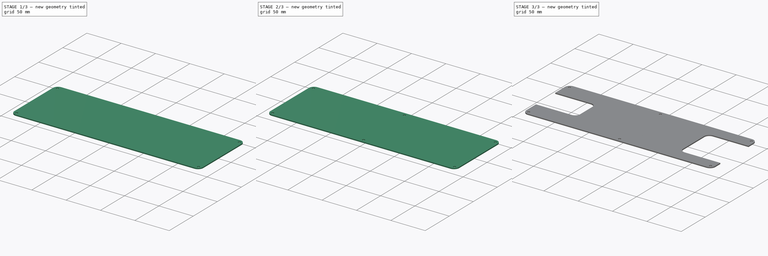
[diagram: build sequence overview — one tinted view per stage of 3, left to right]
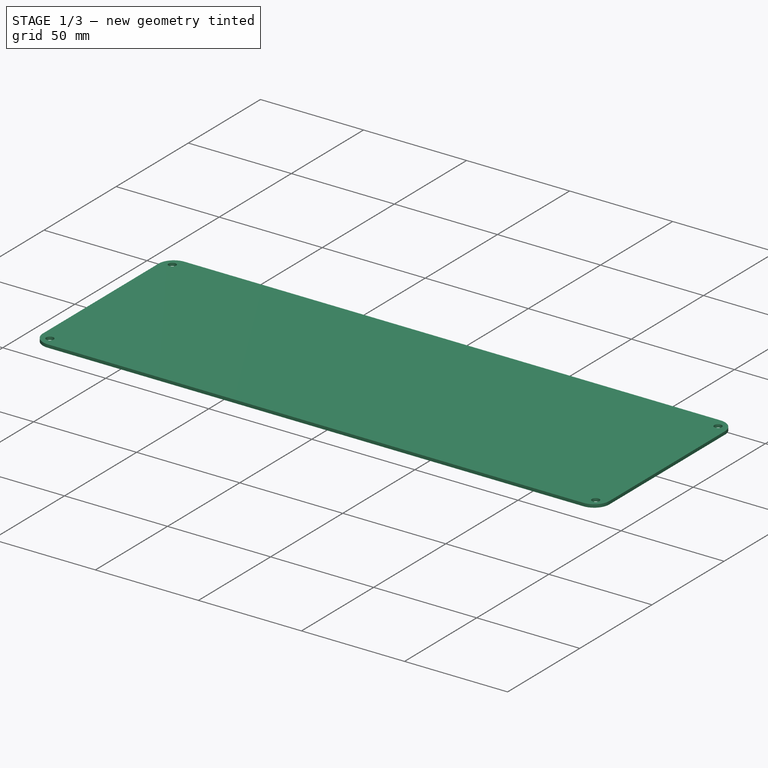
[diagram: stage 1 of 3 — iso view after this stage's code; geometry added in this stage tinted green]
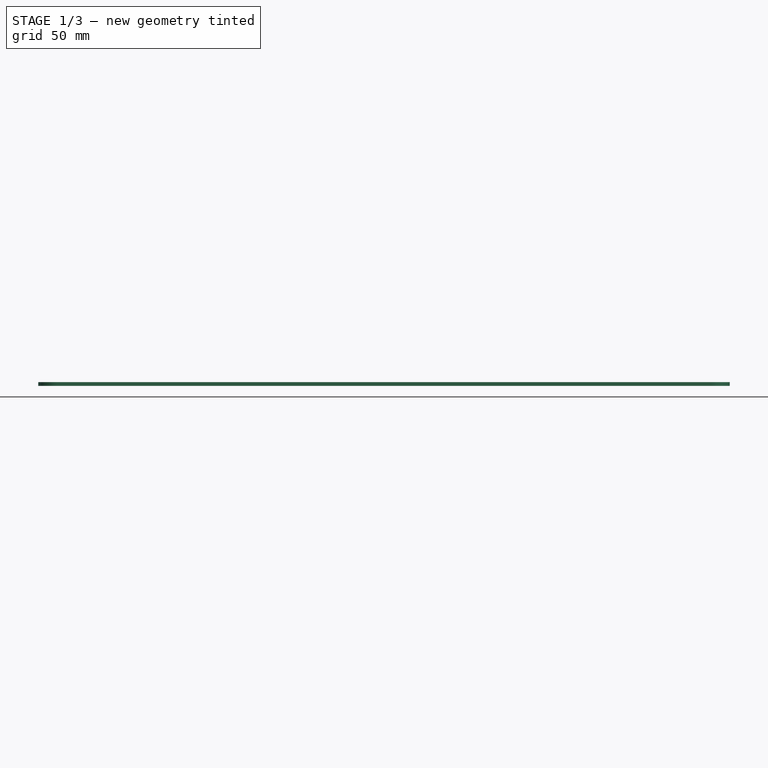
[diagram: stage 1 of 3 — front view after this stage's code; geometry added in this stage tinted green]
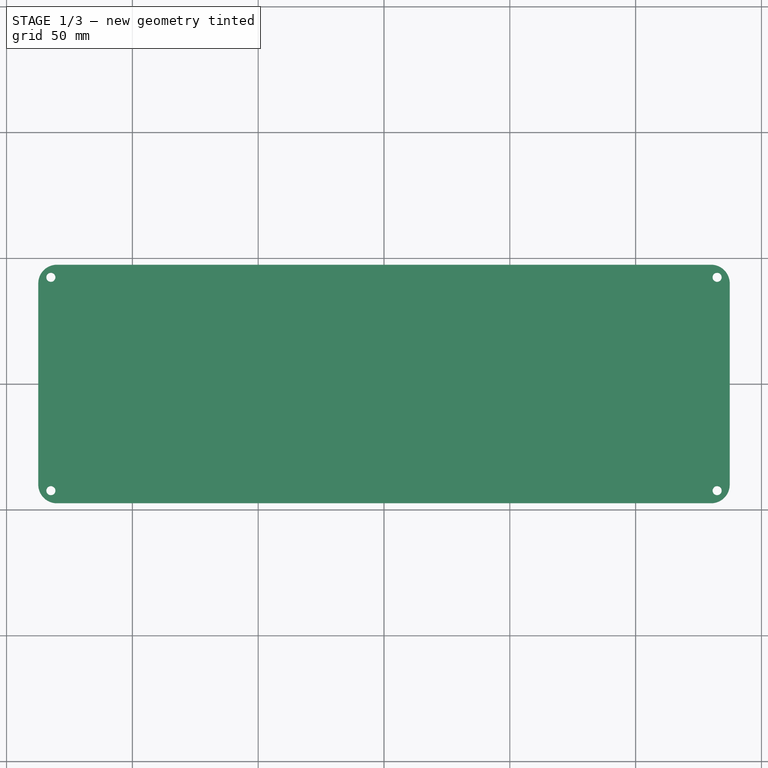
[diagram: stage 1 of 3 — top view after this stage's code; geometry added in this stage tinted green]
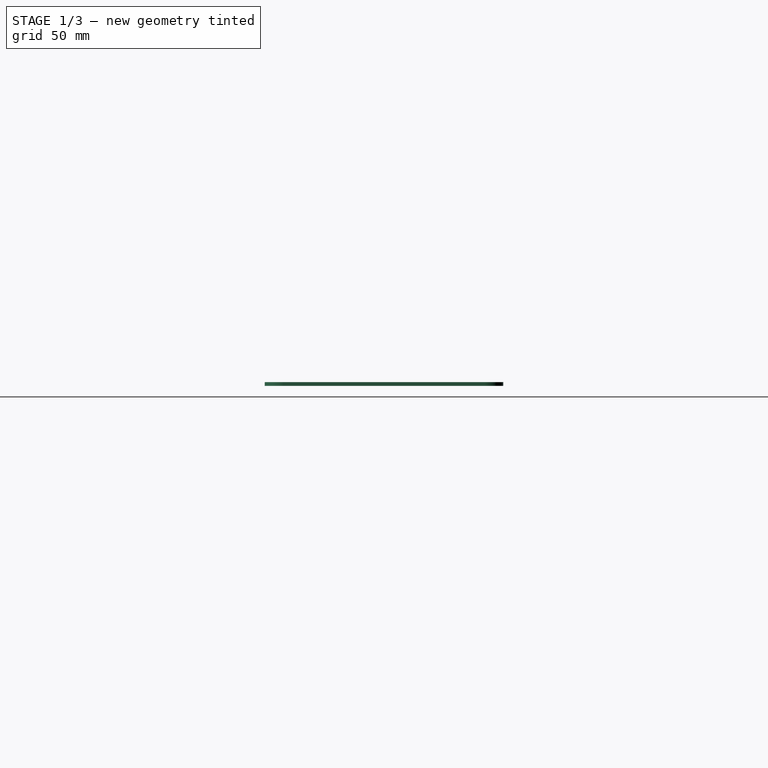
[diagram: stage 1 of 3 — right view after this stage's code; geometry added in this stage tinted green]
FCSTD DOCUMENT  (FreeCAD 1.0R39319 (Git))
Label: TopEnclosureDisplayBack_v2
License: All rights reserved
LicenseURL: https://en.wikipedia.org/wiki/All_rights_reserved
objects: PartDesign::SubShapeBinder×7, PartDesign::Hole×3, PartDesign::Mirrored×3, Sketcher::SketchObject×3, App::Link×2, PartDesign::Pad×2, PartDesign::MultiTransform×1, PartDesign::Pocket×1, PartDesign::Body×1
note: 40 computed .brp shape members not serialized (recipe doc carries the construction recipe); baked Part::Feature solids carry a one-line shape summary decoded from their .brp
EXTERNAL_REF file=Spec.FCStd obj=Spreadsheet
EXTERNAL_REF file=TopEnclosure.FCStd obj=Sketch

FEATURE [App::Link] Link  label="Vars"
  LinkedObject = -> <external Spec.FCStd>#Spreadsheet
FEATURE [App::Link] Link001  label="MasterSketch"
  LinkedObject = -> <external TopEnclosure.FCStd>#Sketch
FEATURE [PartDesign::SubShapeBinder] Binder
  BindCopyOnChange = 0
  BindMode = 0
  ClaimChildren = false
  Context = -> Body [Binder.]
  Fuse = false
  MakeFace = true
  OffsetFill = false
  OffsetIntersection = false
  OffsetJoinType = 0
  OffsetOpenResult = false
  PartialLoad = false
  Refine = true
  Relative = true
  Support = -> [Link001[Edge9,Edge10,Edge11,Edge12,Edge13,Edge14,Edge15,Edge16]]
  _Version = 2
FEATURE [PartDesign::SubShapeBinder] Binder001
  BindCopyOnChange = 0
  BindMode = 0
  ClaimChildren = false
  Context = -> Body [Binder001.]
  Fuse = false
  MakeFace = true
  OffsetFill = false
  OffsetIntersection = false
  OffsetJoinType = 0
  OffsetOpenResult = false
  PartialLoad = false
  Refine = true
  Relative = true
  Support = -> [Link001[Edge39]]
  _Version = 2
FEATURE [PartDesign::SubShapeBinder] Binder002
  BindCopyOnChange = 0
  BindMode = 0
  ClaimChildren = false
  Context = -> Body [Binder002.]
  Fuse = false
  MakeFace = true
  OffsetFill = false
  OffsetIntersection = false
  OffsetJoinType = 0
  OffsetOpenResult = false
  PartialLoad = false
  Refine = true
  Relative = true
  Support = -> [Link001[Edge40]]
  _Version = 2
FEATURE [PartDesign::Pad] Pad
  Direction = (0,0,1)
  Length = 1.5
  Length2 = 10
  Profile = -> Binder
  Refine = true
  Suppressed = false
  Type = 0
  expr: Length = <<Vars>>.top_enclosure_display_back_depth
FEATURE [PartDesign::Hole] Hole
  BaseFeature = -> Pad
  CustomThreadClearance = 0
  Depth = 25
  DepthType = 0
  Diameter = 3.6
  DrillForDepth = false
  DrillPoint = 1
  DrillPointAngle = 118
  HoleCutCountersinkAngle = 90
  HoleCutCustomValues = false
  HoleCutDepth = 0
  HoleCutDiameter = 6.1
  HoleCutType = 0
  ModelThread = false
  Profile = -> Binder001
  Refine = true
  Reversed = true
  Suppressed = false
  Tapered = false
  TaperedAngle = 90
  ThreadClass = 0
  ThreadDepth = 25
  ThreadDepthType = 0
  ThreadDirection = 0
  ThreadFit = 2
  ThreadSize = 9
  ThreadType = 1
  Threaded = false
  UseCustomThreadClearance = false
FEATURE [PartDesign::Mirrored] Mirrored
  MirrorPlane = -> YZ_Plane
  Refine = true
  Suppressed = false
  TransformMode = 0
FEATURE [PartDesign::Mirrored] Mirrored001
  MirrorPlane = -> XZ_Plane
  Refine = true
  Suppressed = false
  TransformMode = 0
FEATURE [PartDesign::MultiTransform] MultiTransform
  BaseFeature = -> Hole
  Originals = -> [Hole]
  Refine = true
  Suppressed = false
  TransformMode = 0
  Transformations = -> [Mirrored,Mirrored001]
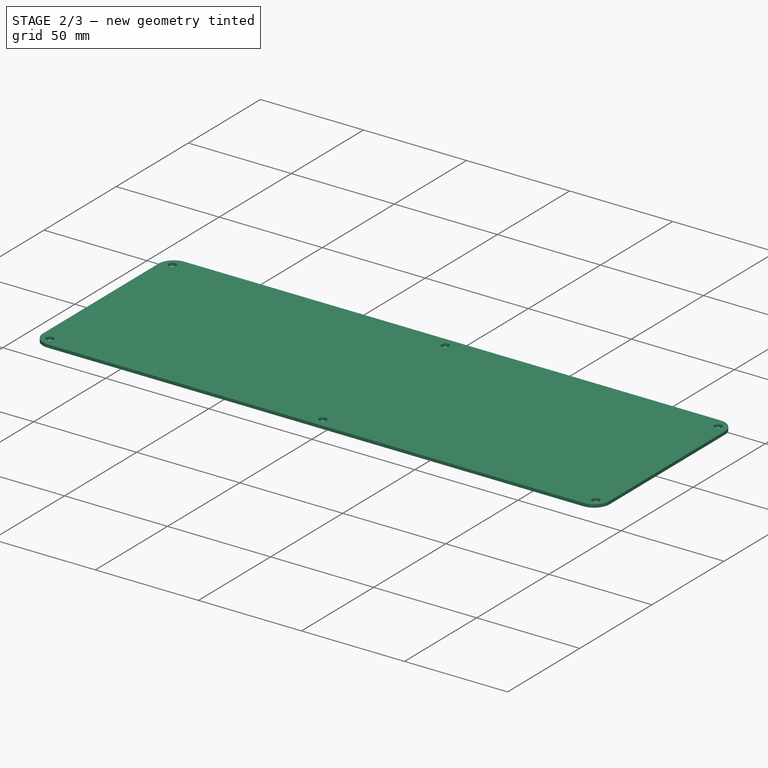
[diagram: stage 2 of 3 — iso view after this stage's code; geometry added in this stage tinted green]
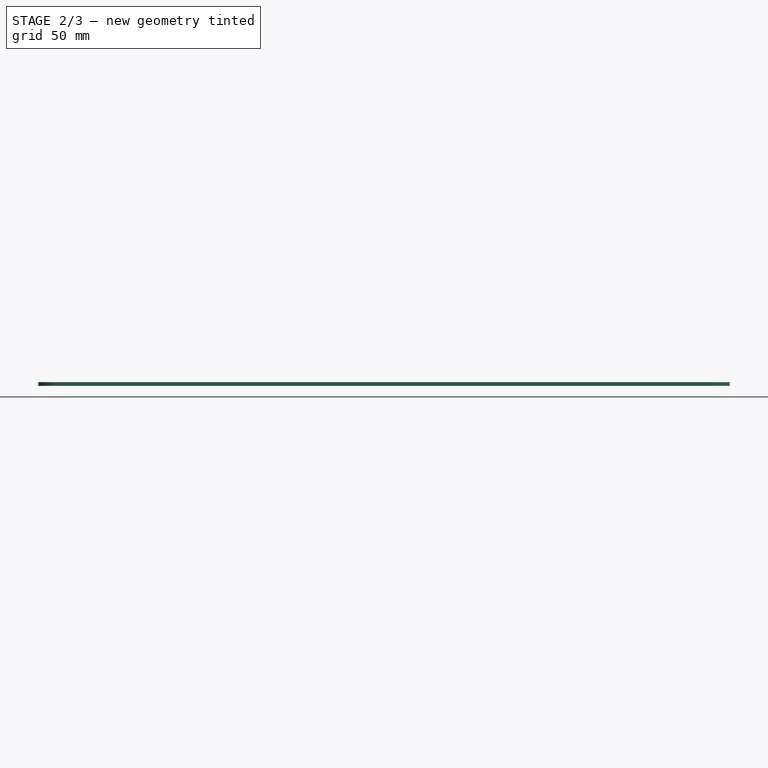
[diagram: stage 2 of 3 — front view after this stage's code; geometry added in this stage tinted green]
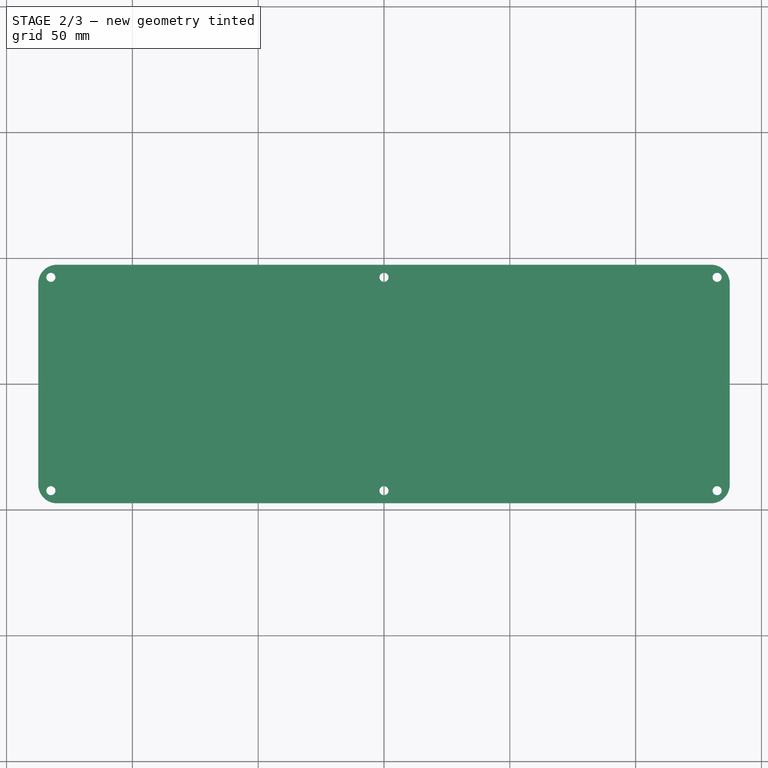
[diagram: stage 2 of 3 — top view after this stage's code; geometry added in this stage tinted green]
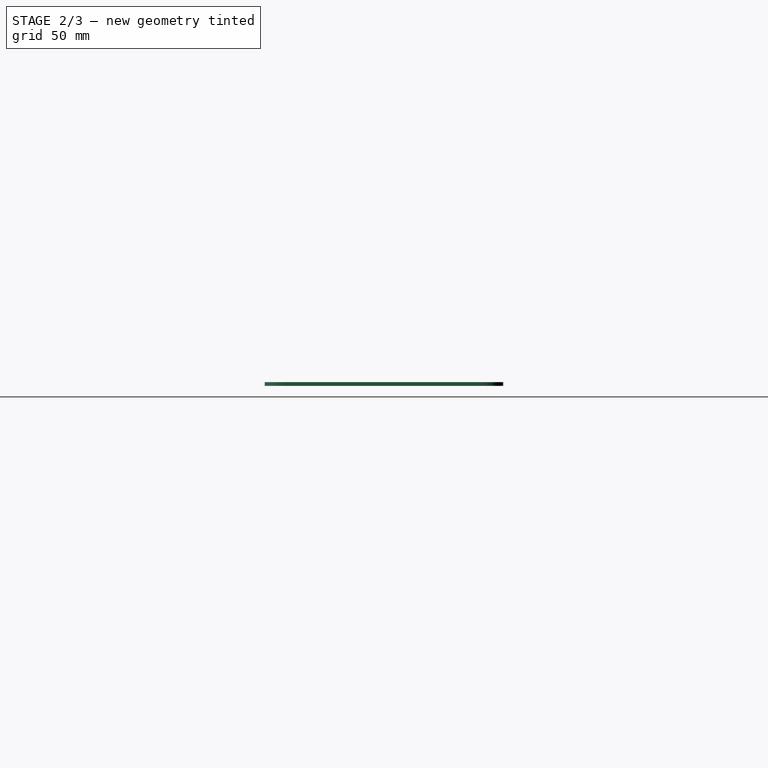
[diagram: stage 2 of 3 — right view after this stage's code; geometry added in this stage tinted green]
FEATURE [PartDesign::Hole] Hole001
  BaseFeature = -> MultiTransform
  CustomThreadClearance = 0
  Depth = 25
  DepthType = 0
  Diameter = 3.6
  DrillForDepth = false
  DrillPoint = 1
  DrillPointAngle = 118
  HoleCutCountersinkAngle = 90
  HoleCutCustomValues = false
  HoleCutDepth = 0
  HoleCutDiameter = 6.1
  HoleCutType = 0
  ModelThread = false
  Profile = -> Binder002
  Refine = true
  Reversed = true
  Suppressed = false
  Tapered = false
  TaperedAngle = 90
  ThreadClass = 0
  ThreadDepth = 25
  ThreadDepthType = 0
  ThreadDirection = 0
  ThreadFit = 2
  ThreadSize = 9
  ThreadType = 1
  Threaded = false
  UseCustomThreadClearance = false
FEATURE [PartDesign::Mirrored] Mirrored002
  BaseFeature = -> Hole001
  MirrorPlane = -> XZ_Plane
  Originals = -> [Hole001]
  Refine = true
  Suppressed = false
  TransformMode = 0
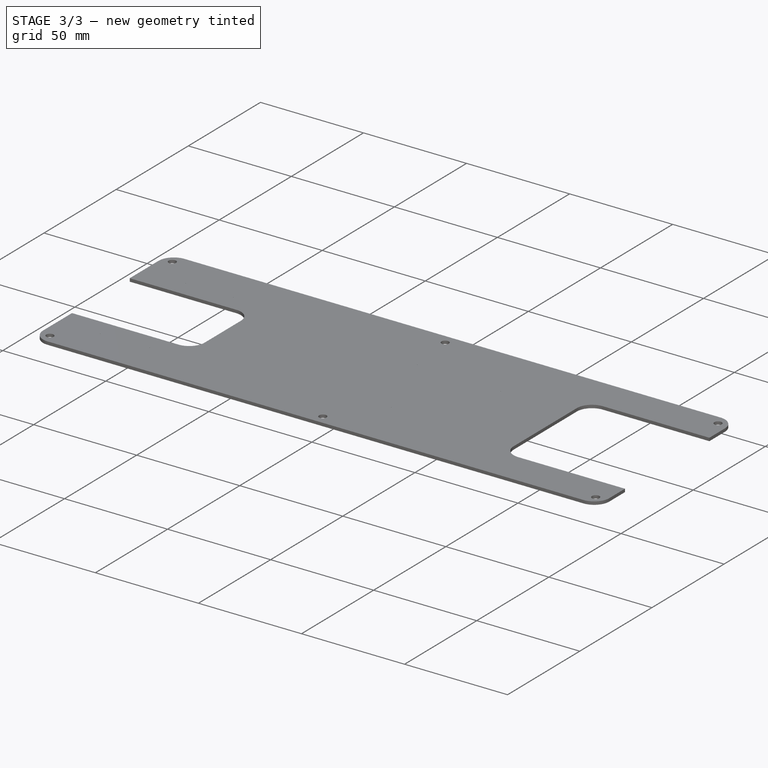
[diagram: stage 3 of 3 — iso view after this stage's code; geometry added in this stage tinted green]
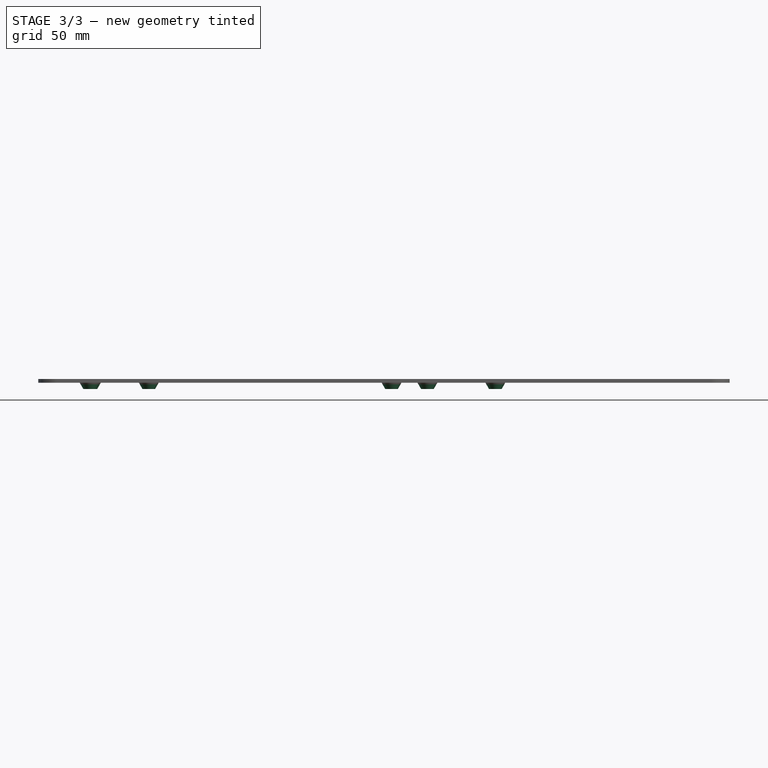
[diagram: stage 3 of 3 — front view after this stage's code; geometry added in this stage tinted green]
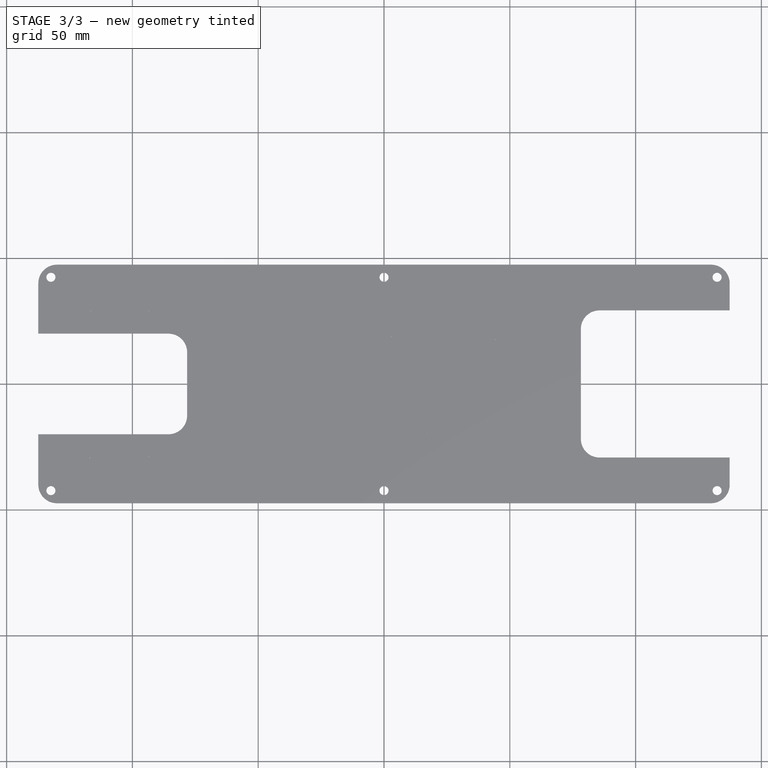
[diagram: stage 3 of 3 — top view after this stage's code; geometry added in this stage tinted green]
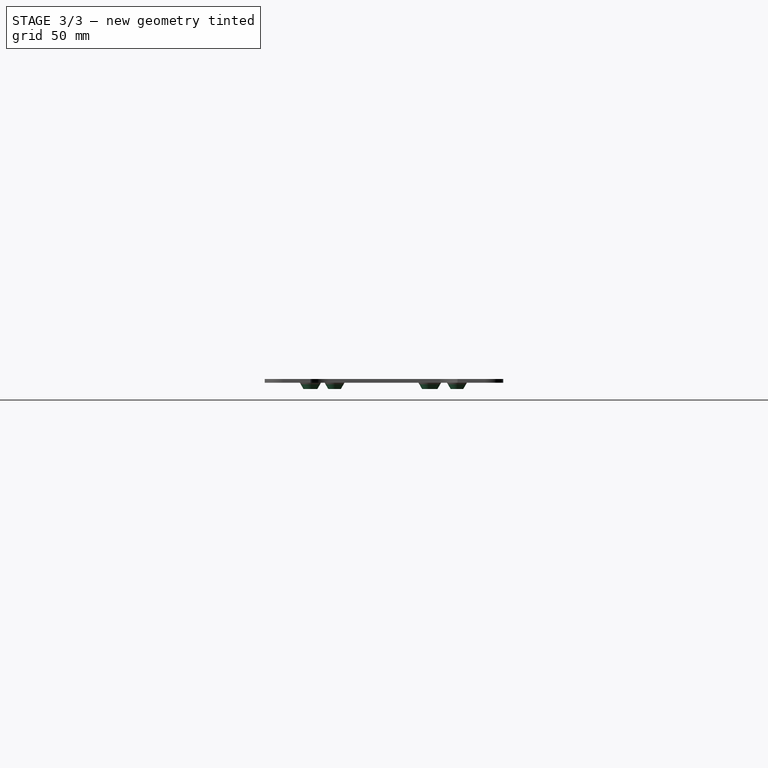
[diagram: stage 3 of 3 — right view after this stage's code; geometry added in this stage tinted green]
FEATURE [PartDesign::SubShapeBinder] Binder003
  BindCopyOnChange = 0
  BindMode = 0
  ClaimChildren = false
  Context = -> Body [Binder003.]
  Fuse = false
  MakeFace = true
  OffsetFill = false
  OffsetIntersection = false
  OffsetJoinType = 0
  OffsetOpenResult = false
  PartialLoad = false
  Refine = true
  Relative = true
  Support = -> [Link001[Edge47]]
  _Version = 2
FEATURE [PartDesign::SubShapeBinder] Binder004
  BindCopyOnChange = 0
  BindMode = 0
  ClaimChildren = false
  Context = -> Body [Binder004.]
  Fuse = false
  MakeFace = true
  OffsetFill = false
  OffsetIntersection = false
  OffsetJoinType = 0
  OffsetOpenResult = false
  PartialLoad = false
  Refine = true
  Relative = true
  Support = -> [Link001[Edge35]]
  _Version = 2
FEATURE [Sketcher::SketchObject] Sketch001
  ArcFitTolerance = 1e-06
  AttachmentSupport = -> [XY_Plane]
  ExternalGeometry = -> [Binder004]
  FullyConstrained = true
  MakeInternals = false
  MapMode = 5
  sketch-geometry (34):
    g0: LineSegment StartX=88.25 StartY=4.75 StartZ=0 EndX=88.25 EndY=-20.25 EndZ=0
    g1: LineSegment StartX=0.25 StartY=18.25 StartZ=0 EndX=0.25 EndY=-20.25 EndZ=0
    g2: LineSegment StartX=3.25 StartY=-23.25 StartZ=0 EndX=57.25 EndY=-23.25 EndZ=0
    g3: LineSegment StartX=60.25 StartY=-20.25 StartZ=0 EndX=60.25 EndY=18.25 EndZ=0
    g4: LineSegment StartX=57.25 StartY=21.25 StartZ=0 EndX=3.25 EndY=21.25 EndZ=0
    g5: ArcOfCircle CenterX=3.25 CenterY=18.25 CenterZ=0 NormalX=0 NormalY=0 NormalZ=1 AngleXU=0 Radius=3 StartAngle=1.5708 EndAngle=3.14159
    g6: ArcOfCircle CenterX=3.25 CenterY=-20.25 CenterZ=0 NormalX=0 NormalY=0 NormalZ=1 AngleXU=0 Radius=3 StartAngle=3.14159 EndAngle=4.71239
    g7: ArcOfCircle CenterX=57.25 CenterY=-20.25 CenterZ=0 NormalX=0 NormalY=0 NormalZ=1 AngleXU=0 Radius=3 StartAngle=4.71239 EndAngle=6.28319
    g8: ArcOfCircle CenterX=57.25 CenterY=18.25 CenterZ=0 NormalX=0 NormalY=0 NormalZ=1 AngleXU=0 Radius=3 StartAngle=-9e-16 EndAngle=1.5708
    g9: GeomPoint [constr] X=0.25 Y=21.25 Z=0
    g10: GeomPoint [constr] X=60.25 Y=-23.25 Z=0
    g11: LineSegment StartX=58.25 StartY=4.75 StartZ=0 EndX=58.25 EndY=-20.25 EndZ=0
    g12: Circle CenterX=3 CenterY=18.75 CenterZ=0 NormalX=0 NormalY=0 NormalZ=1 AngleXU=0 Radius=1.5
    g13: Circle CenterX=44.25 CenterY=17.65 CenterZ=0 NormalX=0 NormalY=0 NormalZ=1 AngleXU=0 Radius=1.5
    g14: Circle CenterX=17.25 CenterY=-19.65 CenterZ=0 NormalX=0 NormalY=0 NormalZ=1 AngleXU=0 Radius=1.5
    g15: LineSegment StartX=-117 StartY=-32.5 StartZ=0 EndX=-93 EndY=-32.5 EndZ=0
    g16: LineSegment StartX=-90 StartY=-29.5 StartZ=0 EndX=-90 EndY=29.5 EndZ=0
    g17: LineSegment StartX=-93 StartY=32.5 StartZ=0 EndX=-117 EndY=32.5 EndZ=0
    g18: LineSegment StartX=-120 StartY=29.5 StartZ=0 EndX=-120 EndY=-29.5 EndZ=0
    g19: ArcOfCircle CenterX=-117 CenterY=-29.5 CenterZ=0 NormalX=0 NormalY=0 NormalZ=1 AngleXU=0 Radius=3 StartAngle=3.14159 EndAngle=4.71239
    g20: ArcOfCircle CenterX=-93 CenterY=-29.5 CenterZ=0 NormalX=0 NormalY=0 NormalZ=1 AngleXU=0 Radius=3 StartAngle=4.71239 EndAngle=6.28319
    g21: ArcOfCircle CenterX=-93 CenterY=29.5 CenterZ=0 NormalX=0 NormalY=0 NormalZ=1 AngleXU=0 Radius=3 StartAngle=0 EndAngle=1.5708
    g22: ArcOfCircle CenterX=-117 CenterY=29.5 CenterZ=0 NormalX=0 NormalY=0 NormalZ=1 AngleXU=0 Radius=3 StartAngle=1.5708 EndAngle=3.14159
    g23: GeomPoint [constr] X=-90 Y=32.5 Z=0
    g24: GeomPoint [constr] X=-105 Y=0 Z=0
    g25: LineSegment [constr] StartX=-116.5 StartY=-29 StartZ=0 EndX=-93.5 EndY=-29 EndZ=0
    g26: LineSegment [constr] StartX=-93.5 StartY=-29 StartZ=0 EndX=-93.5 EndY=29 EndZ=0
    g27: LineSegment [constr] StartX=-93.5 StartY=29 StartZ=0 EndX=-116.5 EndY=29 EndZ=0
    g28: LineSegment [constr] StartX=-116.5 StartY=29 StartZ=0 EndX=-116.5 EndY=-29 EndZ=0
    g29: GeomPoint [constr] X=-105 Y=0 Z=0
    g30: Circle CenterX=-116.5 CenterY=29 CenterZ=0 NormalX=0 NormalY=0 NormalZ=1 AngleXU=0 Radius=1.375
    g31: Circle CenterX=-93.5 CenterY=29 CenterZ=0 NormalX=0 NormalY=0 NormalZ=1 AngleXU=0 Radius=1.375
    g32: Circle CenterX=-93.5 CenterY=-29 CenterZ=0 NormalX=0 NormalY=0 NormalZ=1 AngleXU=0 Radius=1.375
    g33: Circle CenterX=-117 CenterY=-29.5 CenterZ=0 NormalX=0 NormalY=0 NormalZ=1 AngleXU=0 Radius=1.375
  constraints (84):
    c: Vertical(g0)
    c: DistanceX(g0,g-3) = 30
    c: DistanceY(g-3,g0) = 12
    c: DistanceY(g0,g0) = 25
    c: Tangent(g1,g5) = -1.5708
    c: Tangent(g1,g6) = -1.5708
    c: Tangent(g2,g6) = -1.5708
    c: Tangent(g2,g7) = -1.5708
    c: Tangent(g3,g7) = -1.5708
    c: Tangent(g3,g8) = -1.5708
    c: Tangent(g4,g8) = -1.5708
    c: Tangent(g4,g5) = -1.5708
    c: Vertical(g1)
    c: Vertical(g3)
    c: Horizontal(g2)
    c: Horizontal(g4)
    c: Equal(g5,g6)
    c: Equal(g6,g7)
    c: Equal(g7,g8)
    c: PointOnObject(g9,g1)
    c: PointOnObject(g9,g4)
    c: PointOnObject(g10,g2)
    c: PointOnObject(g10,g3)
    c: DistanceX(g1,g3) = 60
    c: DistanceY(g2,g4) = 44.5
    c: Radius(g6) = 3
    c: Distance(g11) = 25
    c: Vertical(g11)
    c: DistanceY(g2,g11) = 3
    c: DistanceX(g11,g3) = 2
    c: Horizontal(g11,g0)
    c: Equal(g14,g13)
    c: Equal(g13,g12)
    c: Diameter(g13) = 3
    c: DistanceY(g12,g4) = 2.5
    c: DistanceX(g1,g12) = 2.75
    c: DistanceY(g2,g14) = 3.6
    c: DistanceX(g1,g14) = 17
    c: DistanceY(g13,g4) = 3.6
    c: DistanceX(g13,g3) = 16
    c: DistanceX(g11,g0) = 30
    c: Tangent(g15,g19) = -1.5708
    c: Tangent(g15,g20) = -1.5708
    c: Tangent(g16,g20) = -1.5708
    c: Tangent(g16,g21) = -1.5708
    c: Tangent(g17,g21) = -1.5708
    c: Tangent(g17,g22) = -1.5708
    c: Tangent(g18,g22) = -1.5708
    c: Tangent(g18,g19) = -1.5708
    c: Horizontal(g15)
    c: Horizontal(g17)
    c: Vertical(g16)
    c: Vertical(g18)
    c: Equal(g19,g20)
    c: Equal(g20,g21)
    c: Equal(g21,g22)
    c: Symmetric(g17,g15,g24)
    c: PointOnObject(g23,g16)
    c: PointOnObject(g23,g17)
    c: Radius(g20) = 3
    c: PointOnObject(g24,g-1)
    c: DistanceX(g18,g16) = 30
    c: DistanceY(g15,g17) = 65
    c: DistanceX(g24,g-1) = 105
    c: Coincident(g25,g26)
    c: Coincident(g26,g27)
    c: Coincident(g27,g28)
    c: Coincident(g28,g25)
    c: Horizontal(g25)
    c: Horizontal(g27)
    c: Vertical(g26)
    c: Vertical(g28)
    c: Symmetric(g27,g25,g29)
    c: Coincident(g29,g24)
    c: DistanceY(g25,g27) = 58
    c: DistanceX(g27,g27) = 23
    c: Coincident(g30,g27)
    c: Diameter(g30) = 2.75
    c: Coincident(g31,g26)
    c: Coincident(g32,g25)
    c: Coincident(g33,g19)
    c: Equal(g33,g32)
    c: Equal(g32,g31)
    c: Equal(g31,g30)
FEATURE [Sketcher::SketchObject] Sketch
  ArcFitTolerance = 1e-06
  AttachmentSupport = -> [XY_Plane]
  ExternalGeometry = -> [Binder003,Sketch001,Binder]
  FullyConstrained = true
  MakeInternals = false
  MapMode = 5
  sketch-geometry (18):
    g0: LineSegment StartX=78.25 StartY=21.85 StartZ=0 EndX=78.25 EndY=-21.85 EndZ=0
    g1: LineSegment StartX=85.65 StartY=-29.25 StartZ=0 EndX=142.4 EndY=-29.25 EndZ=0
    g2: LineSegment StartX=142.4 StartY=-29.25 StartZ=0 EndX=142.4 EndY=29.25 EndZ=0
    g3: LineSegment StartX=142.4 StartY=29.25 StartZ=0 EndX=85.65 EndY=29.25 EndZ=0
    g4: ArcOfCircle CenterX=85.65 CenterY=21.85 CenterZ=0 NormalX=0 NormalY=0 NormalZ=1 AngleXU=0 Radius=7.4 StartAngle=1.5708 EndAngle=3.14159
    g5: GeomPoint [constr] X=78.25 Y=29.25 Z=0
    g6: ArcOfCircle CenterX=85.65 CenterY=-21.85 CenterZ=0 NormalX=0 NormalY=0 NormalZ=1 AngleXU=0 Radius=7.4 StartAngle=3.14159 EndAngle=4.71239
    g7: GeomPoint [constr] X=78.25 Y=-29.25 Z=0
    g8: LineSegment StartX=-196.55 StartY=-20 StartZ=0 EndX=-85.65 EndY=-20 EndZ=0
    g9: LineSegment StartX=-78.25 StartY=-12.6 StartZ=0 EndX=-78.25 EndY=12.6 EndZ=0
    g10: LineSegment StartX=-85.65 StartY=20 StartZ=0 EndX=-196.55 EndY=20 EndZ=0
    g11: LineSegment StartX=-196.55 StartY=20 StartZ=0 EndX=-196.55 EndY=-20 EndZ=0
    g12: GeomPoint [constr] X=-137.4 Y=0 Z=0
    g13: ArcOfCircle CenterX=-85.65 CenterY=12.6 CenterZ=0 NormalX=0 NormalY=0 NormalZ=1 AngleXU=0 Radius=7.4 StartAngle=0 EndAngle=1.5708
    g14: GeomPoint [constr] X=-78.25 Y=20 Z=0
    g15: ArcOfCircle CenterX=-85.65 CenterY=-12.6 CenterZ=0 NormalX=0 NormalY=0 NormalZ=1 AngleXU=0 Radius=7.4 StartAngle=4.71239 EndAngle=6.28319
    g16: GeomPoint [constr] X=-78.25 Y=-20 Z=0
    g17: LineSegment [constr] StartX=-78.25 StartY=0 StartZ=0 EndX=78.25 EndY=0 EndZ=0
  constraints (43):
    c: Coincident(g1,g2)
    c: Coincident(g2,g3)
    c: Vertical(g0)
    c: Horizontal(g1)
    c: Horizontal(g3)
    c: Symmetric(g1,g2,g-1)
    c: DistanceY(g-3,g2) = 2
    c: DistanceX(g-4,g2) = 5
    c: PointOnObject(g5,g0)
    c: PointOnObject(g5,g3)
    c: Tangent(g0,g4) = -1.5708
    c: Tangent(g3,g4) = -1.5708
    c: PointOnObject(g7,g0)
    c: PointOnObject(g7,g1)
    c: Tangent(g0,g6) = -1.5708
    c: Tangent(g1,g6) = -1.5708
    c: Equal(g6,g4)
    c: Equal(g4,g-4)
    c: DistanceX(g0,g-6) = 10
    c: Coincident(g10,g11)
    c: Coincident(g11,g8)
    c: Horizontal(g8)
    c: Horizontal(g10)
    c: Vertical(g9)
    c: Vertical(g11)
    c: Symmetric(g14,g8,g12)
    c: PointOnObject(g12,g-1)
    c: Vertical(g12,g-7)
    c: PointOnObject(g14,g9)
    c: PointOnObject(g14,g10)
    c: Tangent(g9,g13) = -1.5708
    c: Tangent(g10,g13) = -1.5708
    c: PointOnObject(g16,g8)
    c: PointOnObject(g16,g9)
    c: Tangent(g8,g15) = -1.5708
    c: Tangent(g9,g15) = -1.5708
    c: Equal(g15,g13)
    c: Equal(g13,g4)
    c: DistanceY(g11,g11) = 40
    c: PointOnObject(g17,g9)
    c: PointOnObject(g17,g0)
    c: Horizontal(g17)
    c: Symmetric(g17,g17,g-1)
FEATURE [PartDesign::Pocket] Pocket
  BaseFeature = -> Mirrored002
  Direction = (0,0,-1)
  Length = 5
  Length2 = 5
  Profile = -> Sketch
  ReferenceAxis = -> Sketch [N_Axis]
  Refine = true
  Reversed = true
  Suppressed = false
  Type = 1
FEATURE [Sketcher::SketchObject] Sketch002
  ArcFitTolerance = 1e-06
  AttachmentOffset = pos=(0,0,-2.5) rot=(0,0,1;0rad)
  AttachmentSupport = -> [XY_Plane]
  ExternalGeometry = -> [Sketch001]
  FullyConstrained = true
  MakeInternals = false
  MapMode = 5
  Placement = pos=(0,0,-2.5) rot=(0,0,1;0rad)
  sketch-geometry (7):
    g0: Circle CenterX=-116.5 CenterY=29 CenterZ=0 NormalX=0 NormalY=0 NormalZ=1 AngleXU=0 Radius=2.5
    g1: Circle CenterX=-93.5 CenterY=29 CenterZ=0 NormalX=0 NormalY=0 NormalZ=1 AngleXU=0 Radius=2.5
    g2: Circle CenterX=-117 CenterY=-29.5 CenterZ=0 NormalX=0 NormalY=0 NormalZ=1 AngleXU=0 Radius=2.5
    g3: Circle CenterX=-93.5 CenterY=-29 CenterZ=0 NormalX=0 NormalY=0 NormalZ=1 AngleXU=0 Radius=2.5
    g4: Circle CenterX=17.25 CenterY=-19.65 CenterZ=0 NormalX=0 NormalY=0 NormalZ=1 AngleXU=0 Radius=2.5
    g5: Circle CenterX=44.25 CenterY=17.65 CenterZ=0 NormalX=0 NormalY=0 NormalZ=1 AngleXU=0 Radius=2.5
    g6: Circle CenterX=3 CenterY=18.75 CenterZ=0 NormalX=0 NormalY=0 NormalZ=1 AngleXU=0 Radius=2.5
  constraints (14):
    c: Coincident(g0,g-4)
    c: Coincident(g1,g-3)
    c: Coincident(g2,g-5)
    c: Coincident(g3,g-6)
    c: Coincident(g4,g-7)
    c: Coincident(g5,g-9)
    c: Coincident(g6,g-8)
    c: Equal(g0,g2)
    c: Equal(g2,g3)
    c: Equal(g3,g1)
    c: Equal(g1,g4)
    c: Equal(g4,g6)
    c: Equal(g6,g5)
    c: Diameter(g0) = 5
FEATURE [PartDesign::SubShapeBinder] Binder005
  BindCopyOnChange = 0
  BindMode = 0
  ClaimChildren = false
  Context = -> Body [Binder005.]
  Fuse = false
  MakeFace = true
  OffsetFill = false
  OffsetIntersection = false
  OffsetJoinType = 0
  OffsetOpenResult = false
  PartialLoad = false
  Refine = true
  Relative = true
  Support = -> [Sketch002]
  _Version = 2
FEATURE [PartDesign::Pad] Pad001
  BaseFeature = -> Pocket
  Direction = (0,0,1)
  Length = 2.5
  Length2 = 10
  Profile = -> Binder005
  Refine = true
  Suppressed = false
  TaperAngle = 30
  Type = 0
FEATURE [PartDesign::SubShapeBinder] Binder006
  BindCopyOnChange = 0
  BindMode = 0
  ClaimChildren = false
  Context = -> Body [Binder006.]
  Fuse = false
  MakeFace = true
  OffsetFill = false
  OffsetIntersection = false
  OffsetJoinType = 0
  OffsetOpenResult = false
  PartialLoad = false
  Refine = true
  Relative = true
  Support = -> [Sketch002]
  _Version = 2
FEATURE [PartDesign::Hole] Hole002
  BaseFeature = -> Pad001
  CustomThreadClearance = 0
  Depth = 3
  DepthType = 0
  Diameter = 3.5
  DrillForDepth = false
  DrillPoint = 1
  DrillPointAngle = 118
  HoleCutCountersinkAngle = 90
  HoleCutCustomValues = false
  HoleCutDepth = 0
  HoleCutDiameter = 6.1
  HoleCutType = 0
  ModelThread = false
  Profile = -> Binder006
  Refine = true
  Reversed = true
  Suppressed = false
  Tapered = false
  TaperedAngle = 90
  ThreadClass = 0
  ThreadDepth = 3
  ThreadDepthType = 0
  ThreadDirection = 0
  ThreadFit = 0
  ThreadSize = 0
  ThreadType = 0
  Threaded = false
  UseCustomThreadClearance = false
  expr: Diameter = <<Vars>>.nut_inserts_m2
FEATURE [PartDesign::Body] Body  label="Top Enclosure Display Back"
  AllowCompound = false
  Group = -> [Binder002,Binder001,Binder,Pad,Hole,MultiTransform,Mirrored,Mirrored001,Hole001,Mirrored002,Sketch,Binder003,Pocket,Sketch001,Binder004,Sketch002,Binder005,Pad001,Binder006,Hole002]
  Origin = -> Origin
  Tip = -> Hole002

RESOLVED EXTERNAL PARTS (link-assembly join: the EXTERNAL_REF files above that resolve inside this repo's crawl, each included once):
---- part Spec.FCStd = doc fcstd_a8ec68f4a39c ----
FCSTD DOCUMENT  (FreeCAD 1.0R39319 (Git))
Label: Spec
License: All rights reserved
LicenseURL: https://en.wikipedia.org/wiki/All_rights_reserved
objects: Spreadsheet::Sheet×1

FEATURE [Spreadsheet::Sheet] Spreadsheet  label="Vars"
  cells = A1='Common; A2='clearance; B2(clearance)=0.2; A3='nut_inserts_m2; B3(nut_inserts_m2)=3.5; A4='nut_inserts_m3; B4(nut_inserts_m3)=4.5; A5='wall; B5(wall)=2.5; A6='ext_radius; B6(ext_radius)=10; A7='hood_angle; B7(hood_angle)=4; A12='Display; A13='display_width; B13(display_width)=231.3; A14='display_height; B14(display_height)=64.3; A15='display_depth; B15(display_depth)=5.5; A16='display_offset_bottom; B16(display_offset_bottom)==3 + display_view_offset; C16='display_view_offset; D16(display_view_offset)=1; A17='display_offset_left; B17(display_offset_left)==2.5 + display_view_offset; A18='display_offset_right; B18(display_offset_right)==7.5 + display_view_offset; A19='display_offset_top; B19(display_offset_top)==3 + display_view_offset; F20='b; A21='Top Enclosure; A22='top_enclosure_width; B22(top_enclosure_width)=280; A23='top_enclosure_height; B23(top_enclosure_height)=100; A24='top_enclosure_front_depth; B24(top_enclosure_front_depth)=1; A25='top_enclosure_back_depth; B25(top_enclosure_back_depth)==wall; A26='top_enclosure_display_back_depth; B26(top_enclosure_display_back_depth)=1; A27='top_enclosure_depth; B27(top_enclosure_depth)=14; A28='top_enclosure_internal_depth; B28(top_enclosure_internal_depth)==top_enclosure_depth - top_enclosure_front_depth - display_depth - top_enclosure_display_back_depth - top_enclosure_back_depth + wall; A30='Bottom Enclosure; A31='bottom_enclosure_width; B31(bottom_enclosure_width)==top_enclosure_width; A32='bottom_enclosure_height; B32(bottom_enclosure_height)=160; A33='bottom_enclosure_depth; B33(bottom_enclosure_depth)=30; A35='Keyboard Plate; A36='keyboard_plate_width; B36(keyboard_plate_width)==235 - 2; A37='keyboard_plate_height; B37(keyboard_plate_height)==82.5 - 2; A38='keyboard_plate_radius; B38(kayboard_plate_radius)==ext_radius / 2; A40='Keyboard Plate; A41='wire_hole_offset_x; B41(wire_hole_offset_x)=40; A42='wire_hole_width; B42(wire_hole_width)=30; A43='wire_hole_height; B43(wire_hole_height)=9
---- part TopEnclosure.FCStd = doc fcstd_a96d0c470227 ----
FCSTD DOCUMENT  (FreeCAD 1.0R39319 (Git))
Label: TopEnclosure
License: All rights reserved
LicenseURL: https://en.wikipedia.org/wiki/All_rights_reserved
objects: App::Link×1, Sketcher::SketchObject×1
note: 2 computed .brp shape members not serialized (recipe doc carries the construction recipe); baked Part::Feature solids carry a one-line shape summary decoded from their .brp
EXTERNAL_REF file=Spec.FCStd obj=Spreadsheet

FEATURE [App::Link] Link  label="Vars"
  LinkedObject = -> <external Spec.FCStd>#Spreadsheet
FEATURE [Sketcher::SketchObject] Sketch  label="MasterSketch"
  ArcFitTolerance = 1e-06
  FullyConstrained = true
  MakeInternals = false
  expr: Constraints[100] = <<Vars>>.display_offset_left
  expr: Constraints[101] = <<Vars>>.display_offset_right
  expr: Constraints[102] = <<Vars>>.display_offset_bottom
  expr: Constraints[150] = <<Vars>>.ext_radius
  expr: Constraints[64] = <<Vars>>.wall
  expr: Constraints[65] = <<Vars>>.top_enclosure_height
  expr: Constraints[66] = <<Vars>>.top_enclosure_width
  expr: Constraints[67] = <<Vars>>.clearance / 2
  expr: Constraints[96] = <<Vars>>.display_width + <<Vars>>.clearance
  expr: Constraints[97] = <<Vars>>.display_height + <<Vars>>.clearance
  expr: Constraints[99] = <<Vars>>.display_offset_top
  sketch-geometry (62):
    g0: LineSegment StartX=-137.5 StartY=40 StartZ=0 EndX=-137.5 EndY=-40 EndZ=0
    g1: LineSegment StartX=-130 StartY=-47.5 StartZ=0 EndX=130 EndY=-47.5 EndZ=0
    g2: LineSegment StartX=137.5 StartY=-40 StartZ=0 EndX=137.5 EndY=40 EndZ=0
    g3: LineSegment StartX=130 StartY=47.5 StartZ=0 EndX=-130 EndY=47.5 EndZ=0
    g4: ArcOfCircle CenterX=-130 CenterY=40 CenterZ=0 NormalX=0 NormalY=0 NormalZ=1 AngleXU=0 Radius=7.5 StartAngle=1.5708 EndAngle=3.14159
    g5: ArcOfCircle CenterX=-130 CenterY=-40 CenterZ=0 NormalX=0 NormalY=0 NormalZ=1 AngleXU=0 Radius=7.5 StartAngle=3.14159 EndAngle=4.71239
    g6: ArcOfCircle CenterX=130 CenterY=-40 CenterZ=0 NormalX=0 NormalY=0 NormalZ=1 AngleXU=0 Radius=7.5 StartAngle=4.71239 EndAngle=6.28319
    g7: ArcOfCircle CenterX=130 CenterY=40 CenterZ=0 NormalX=0 NormalY=0 NormalZ=1 AngleXU=0 Radius=7.5 StartAngle=4e-16 EndAngle=1.5708
    g8: GeomPoint [constr] X=-137.5 Y=47.5 Z=0
    g9: GeomPoint [constr] X=137.5 Y=-47.5 Z=0
    g10: LineSegment StartX=-137.4 StartY=40 StartZ=0 EndX=-137.4 EndY=-40 EndZ=0
    g11: LineSegment StartX=-130 StartY=-47.4 StartZ=0 EndX=130 EndY=-47.4 EndZ=0
    g12: LineSegment StartX=137.4 StartY=-40 StartZ=0 EndX=137.4 EndY=40 EndZ=0
    g13: LineSegment StartX=130 StartY=47.4 StartZ=0 EndX=-130 EndY=47.4 EndZ=0
    g14: ArcOfCircle CenterX=-130 CenterY=40 CenterZ=0 NormalX=0 NormalY=0 NormalZ=1 AngleXU=0 Radius=7.4 StartAngle=1.5708 EndAngle=3.14159
    g15: ArcOfCircle CenterX=-130 CenterY=-40 CenterZ=0 NormalX=0 NormalY=0 NormalZ=1 AngleXU=0 Radius=7.4 StartAngle=3.14159 EndAngle=4.71239
    g16: ArcOfCircle CenterX=130 CenterY=-40 CenterZ=0 NormalX=0 NormalY=0 NormalZ=1 AngleXU=0 Radius=7.4 StartAngle=4.71239 EndAngle=6.28319
    g17: ArcOfCircle CenterX=130 CenterY=40 CenterZ=0 NormalX=0 NormalY=0 NormalZ=1 AngleXU=0 Radius=7.4 StartAngle=3e-16 EndAngle=1.5708
    g18: GeomPoint [constr] X=-137.4 Y=47.4 Z=0
    g19: GeomPoint [constr] X=137.4 Y=-47.4 Z=0
    g20: LineSegment StartX=-140 StartY=40 StartZ=0 EndX=-140 EndY=-40 EndZ=0
    g21: LineSegment StartX=-130 StartY=-50 StartZ=0 EndX=130 EndY=-50 EndZ=0
    g22: LineSegment StartX=140 StartY=-40 StartZ=0 EndX=140 EndY=40 EndZ=0
    g23: LineSegment StartX=130 StartY=50 StartZ=0 EndX=-130 EndY=50 EndZ=0
    g24: ArcOfCircle CenterX=-130 CenterY=40 CenterZ=0 NormalX=0 NormalY=0 NormalZ=1 AngleXU=0 Radius=10 StartAngle=1.5708 EndAngle=3.14159
    g25: ArcOfCircle CenterX=-130 CenterY=-40 CenterZ=0 NormalX=0 NormalY=0 NormalZ=1 AngleXU=0 Radius=10 StartAngle=3.14159 EndAngle=4.71239
    g26: ArcOfCircle CenterX=130 CenterY=-40 CenterZ=0 NormalX=0 NormalY=0 NormalZ=1 AngleXU=0 Radius=10 StartAngle=4.71239 EndAngle=6.28319
    g27: ArcOfCircle CenterX=130 CenterY=40 CenterZ=0 NormalX=0 NormalY=0 NormalZ=1 AngleXU=0 Radius=10 StartAngle=0 EndAngle=1.5708
    g28: GeomPoint [constr] X=-140 Y=50 Z=0
    g29: GeomPoint [constr] X=140 Y=-50 Z=0
    g30: LineSegment StartX=-109.75 StartY=24.25 StartZ=0 EndX=-109.75 EndY=-24.25 EndZ=0
    g31: LineSegment StartX=-105.75 StartY=-28.25 StartZ=0 EndX=105.75 EndY=-28.25 EndZ=0
    g32: LineSegment StartX=109.75 StartY=-24.25 StartZ=0 EndX=109.75 EndY=24.25 EndZ=0
    g33: LineSegment StartX=105.75 StartY=28.25 StartZ=0 EndX=-105.75 EndY=28.25 EndZ=0
    g34: ArcOfCircle CenterX=-105.75 CenterY=24.25 CenterZ=0 NormalX=0 NormalY=0 NormalZ=1 AngleXU=0 Radius=4 StartAngle=1.5708 EndAngle=3.14159
    g35: ArcOfCircle CenterX=-105.75 CenterY=-24.25 CenterZ=0 NormalX=0 NormalY=0 NormalZ=1 AngleXU=0 Radius=4 StartAngle=3.14159 EndAngle=4.71239
    g36: ArcOfCircle CenterX=105.75 CenterY=-24.25 CenterZ=0 NormalX=0 NormalY=0 NormalZ=1 AngleXU=0 Radius=4 StartAngle=4.71239 EndAngle=6.28319
    g37: ArcOfCircle CenterX=105.75 CenterY=24.25 CenterZ=0 NormalX=0 NormalY=0 NormalZ=1 AngleXU=0 Radius=4 StartAngle=0 EndAngle=1.5708
    g38: GeomPoint [constr] X=-109.75 Y=28.25 Z=0
    g39: GeomPoint [constr] X=109.75 Y=-28.25 Z=0
    g40: LineSegment StartX=-113.25 StartY=32.25 StartZ=0 EndX=-113.25 EndY=-32.25 EndZ=0
    g41: LineSegment StartX=-113.25 StartY=-32.25 StartZ=0 EndX=118.25 EndY=-32.25 EndZ=0
    g42: LineSegment StartX=118.25 StartY=-32.25 StartZ=0 EndX=118.25 EndY=32.25 EndZ=0
    g43: LineSegment StartX=118.25 StartY=32.25 StartZ=0 EndX=-113.25 EndY=32.25 EndZ=0
    g44: Circle CenterX=-137.703 CenterY=47.7033 CenterZ=0 NormalX=0 NormalY=0 NormalZ=1 AngleXU=0 Radius=12.5
    g45: Circle CenterX=0 CenterY=49.9 CenterZ=0 NormalX=0 NormalY=0 NormalZ=1 AngleXU=0 Radius=12.5
    g46: Circle CenterX=-132.4 CenterY=42.4 CenterZ=0 NormalX=0 NormalY=0 NormalZ=1 AngleXU=0 Radius=1.5
    g47: Circle CenterX=0 CenterY=42.4 CenterZ=0 NormalX=0 NormalY=0 NormalZ=1 AngleXU=0 Radius=1.5
    g48: LineSegment [constr] StartX=0 StartY=42.4 StartZ=0 EndX=0 EndY=37.4 EndZ=0
    g49: LineSegment [constr] StartX=-132.4 StartY=42.4 StartZ=0 EndX=-128.864 EndY=38.8645 EndZ=0
    g50: LineSegment [constr] StartX=-132.4 StartY=42.4 StartZ=0 EndX=-137.703 EndY=47.7033 EndZ=0
    g51: LineSegment StartX=121.25 StartY=26.25 StartZ=0 EndX=121.25 EndY=25.25 EndZ=0
    g52: LineSegment StartX=122.25 StartY=24.25 StartZ=0 EndX=130.25 EndY=24.25 EndZ=0
    g53: LineSegment StartX=131.25 StartY=25.25 StartZ=0 EndX=131.25 EndY=26.25 EndZ=0
    g54: LineSegment StartX=130.25 StartY=27.25 StartZ=0 EndX=122.25 EndY=27.25 EndZ=0
    g55: ArcOfCircle CenterX=122.25 CenterY=26.25 CenterZ=0 NormalX=0 NormalY=0 NormalZ=1 AngleXU=0 Radius=1 StartAngle=1.5708 EndAngle=3.14159
    g56: ArcOfCircle CenterX=122.25 CenterY=25.25 CenterZ=0 NormalX=0 NormalY=0 NormalZ=1 AngleXU=0 Radius=1 StartAngle=3.14159 EndAngle=4.71239
    g57: ArcOfCircle CenterX=130.25 CenterY=25.25 CenterZ=0 NormalX=0 NormalY=0 NormalZ=1 AngleXU=0 Radius=1 StartAngle=4.71239 EndAngle=6.28319
    g58: ArcOfCircle CenterX=130.25 CenterY=26.25 CenterZ=0 NormalX=0 NormalY=0 NormalZ=1 AngleXU=0 Radius=1 StartAngle=1e-16 EndAngle=1.5708
    g59: GeomPoint [constr] X=121.25 Y=27.25 Z=0
    g60: GeomPoint [constr] X=131.25 Y=24.25 Z=0
    g61: LineSegment [constr] StartX=126.25 StartY=32.25 StartZ=0 EndX=126.25 EndY=-32.25 EndZ=0
  constraints (151):
    c: Tangent(g0,g4) = -1.5708
    c: Tangent(g0,g5) = -1.5708
    c: Tangent(g1,g5) = -1.5708
    c: Tangent(g1,g6) = -1.5708
    c: Tangent(g2,g6) = -1.5708
    c: Tangent(g2,g7) = -1.5708
    c: Tangent(g3,g7) = -1.5708
    c: Tangent(g3,g4) = -1.5708
    c: Vertical(g0)
    c: Vertical(g2)
    c: Horizontal(g1)
    c: Horizontal(g3)
    c: Equal(g4,g5)
    c: Equal(g5,g6)
    c: Equal(g6,g7)
    c: PointOnObject(g8,g0)
    c: PointOnObject(g8,g3)
    c: PointOnObject(g9,g1)
    c: PointOnObject(g9,g2)
    c: Tangent(g10,g14) = -1.5708
    c: Tangent(g10,g15) = -1.5708
    c: Tangent(g11,g15) = -1.5708
    c: Tangent(g11,g16) = -1.5708
    c: Tangent(g12,g16) = -1.5708
    c: Tangent(g12,g17) = -1.5708
    c: Tangent(g13,g17) = -1.5708
    c: Tangent(g13,g14) = -1.5708
    c: Vertical(g10)
    c: Vertical(g12)
    c: Horizontal(g11)
    c: Horizontal(g13)
    c: Equal(g14,g15)
    c: Equal(g15,g16)
    c: Equal(g16,g17)
    c: PointOnObject(g18,g10)
    c: PointOnObject(g18,g13)
    c: PointOnObject(g19,g11)
    c: PointOnObject(g19,g12)
    c: Tangent(g20,g24) = -1.5708
    c: Tangent(g20,g25) = -1.5708
    c: Tangent(g21,g25) = -1.5708
    c: Tangent(g21,g26) = -1.5708
    c: Tangent(g22,g26) = -1.5708
    c: Tangent(g22,g27) = -1.5708
    c: Tangent(g23,g27) = -1.5708
    c: Tangent(g23,g24) = -1.5708
    c: Vertical(g20)
    c: Vertical(g22)
    c: Horizontal(g21)
    c: Horizontal(g23)
    c: Equal(g24,g25)
    c: Equal(g25,g26)
    c: Equal(g26,g27)
    c: PointOnObject(g28,g20)
    c: PointOnObject(g28,g23)
    c: PointOnObject(g29,g21)
    c: PointOnObject(g29,g22)
    c: Symmetric(g25,g27,g-1)
    c: Symmetric(g5,g7,g-1)
    c: Symmetric(g15,g17,g-1)
    c: Horizontal(g20,g0)
    c: Horizontal(g0,g10)
    c: Vertical(g13,g3)
    c: Vertical(g3,g23)
    c: DistanceX(g20,g0) = 2.5
    c: DistanceY(g21,g23) = 100
    c: DistanceX(g20,g22) = 280
    c: DistanceY(g13,g3) = 0.1
    c: Tangent(g30,g34) = -1.5708
    c: Tangent(g30,g35) = -1.5708
    c: Tangent(g31,g35) = -1.5708
    c: Tangent(g31,g36) = -1.5708
    c: Tangent(g32,g36) = -1.5708
    c: Tangent(g32,g37) = -1.5708
    c: Tangent(g33,g37) = -1.5708
    c: Tangent(g33,g34) = -1.5708
    c: Vertical(g30)
    c: Vertical(g32)
    c: Horizontal(g31)
    c: Horizontal(g33)
    c: Equal(g34,g35)
    c: Equal(g35,g36)
    c: Equal(g36,g37)
    c: PointOnObject(g38,g30)
    c: PointOnObject(g38,g33)
    c: PointOnObject(g39,g31)
    c: PointOnObject(g39,g32)
    c: Coincident(g40,g41)
    c: Coincident(g41,g42)
    c: Coincident(g42,g43)
    c: Coincident(g43,g40)
    c: Vertical(g40)
    c: Vertical(g42)
    c: Horizontal(g41)
    c: Horizontal(g43)
    c: Symmetric(g35,g37,g-1)
    c: DistanceX(g41,g41) = 231.5
    c: DistanceY(g42,g42) = 64.5
    c: Radius(g34) = 4
    c: DistanceY(g33,g40) = 4
    c: DistanceX(g40,g30) = 3.5
    c: DistanceX(g32,g42) = 8.5
    c: DistanceY(g41,g31) = 4
    c: PointOnObject(g45,g-2)
    c: PointOnObject(g47,g-2)
    c: Equal(g46,g47)
    c: Equal(g45,g44)
    c: Diameter(g45) = 25
    c: Coincident(g48,g47)
    c: PointOnObject(g48,g45)
    c: Vertical(g48)
    c: DistanceY(g48,g48) = 5
    c: Horizontal(g47,g46)
    c: Coincident(g49,g46)
    c: PointOnObject(g49,g44)
    c: Equal(g49,g48)
    c: PointOnObject(g4,g49)
    c: Coincident(g50,g46)
    c: Coincident(g50,g44)
    c: Parallel(g49,g50)
    c: PointOnObject(g28,g50)
    c: DistanceY(g46,g13) = 5
    c: Diameter(g46) = 3
    c: Tangent(g51,g55) = -1.5708
    c: Tangent(g51,g56) = -1.5708
    c: Tangent(g52,g56) = -1.5708
    c: Tangent(g52,g57) = -1.5708
    c: Tangent(g53,g57) = -1.5708
    c: Tangent(g53,g58) = -1.5708
    c: Tangent(g54,g58) = -1.5708
    c: Tangent(g54,g55) = -1.5708
    c: Vertical(g51)
    c: Vertical(g53)
    c: Horizontal(g52)
    c: Horizontal(g54)
    c: Equal(g55,g56)
    c: Equal(g56,g57)
    c: Equal(g57,g58)
    c: PointOnObject(g59,g51)
    c: PointOnObject(g59,g54)
    c: PointOnObject(g60,g52)
    c: PointOnObject(g60,g53)
    c: Radius(g56) = 1
    c: DistanceY(g52,g54) = 3
    c: DistanceX(g51,g53) = 10
    c: Equal(g42,g61)
    c: Horizontal(g42,g61)
    c: DistanceX(g42,g61) = 8
    c: Symmetric(g54,g54,g61)
    c: DistanceY(g54,g42) = 5
    c: Radius(g25) = 10
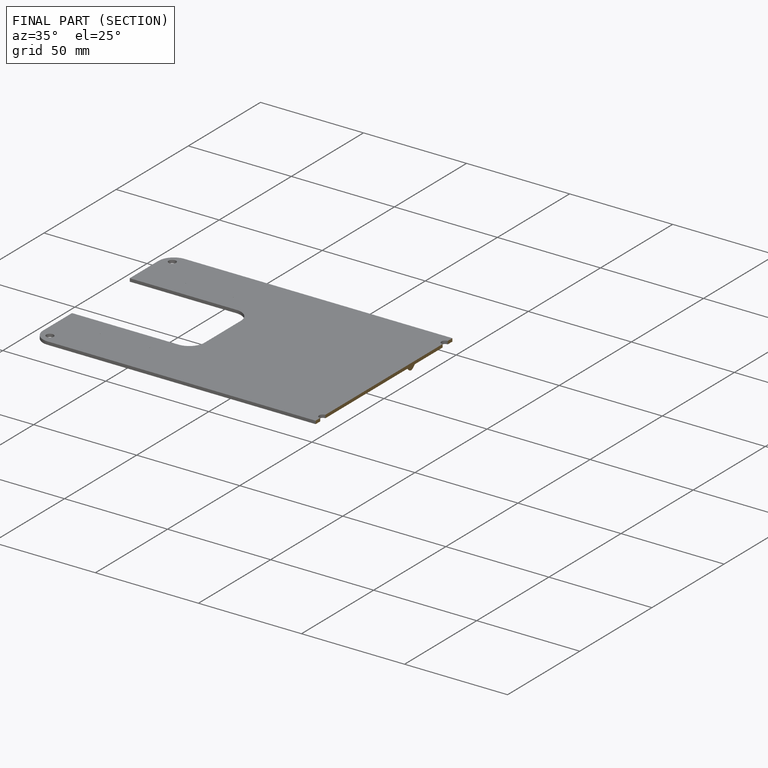
[diagram: finished part — half-section view (interior)]
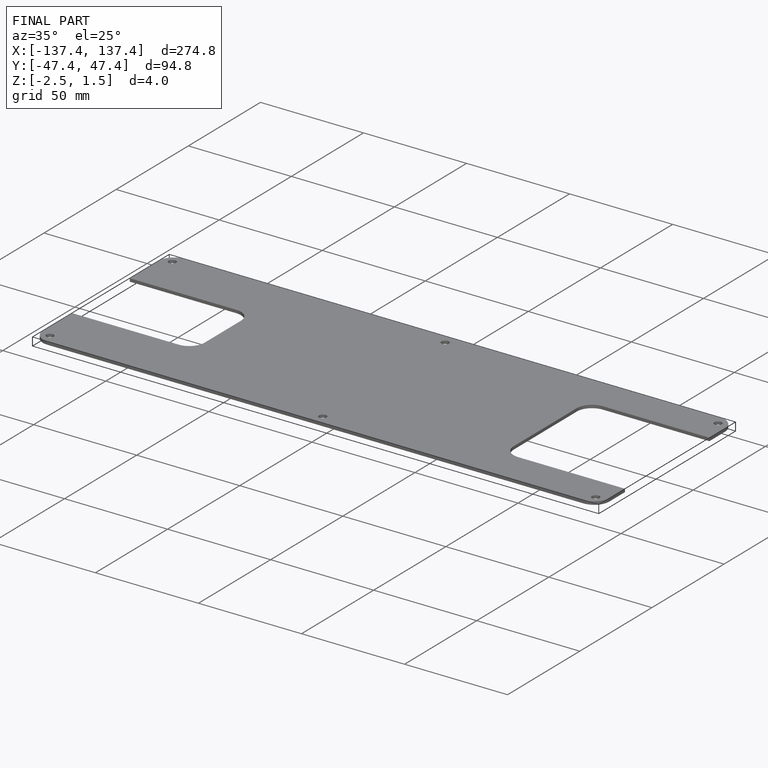
[diagram: finished part — iso view with bounding-box wireframe]
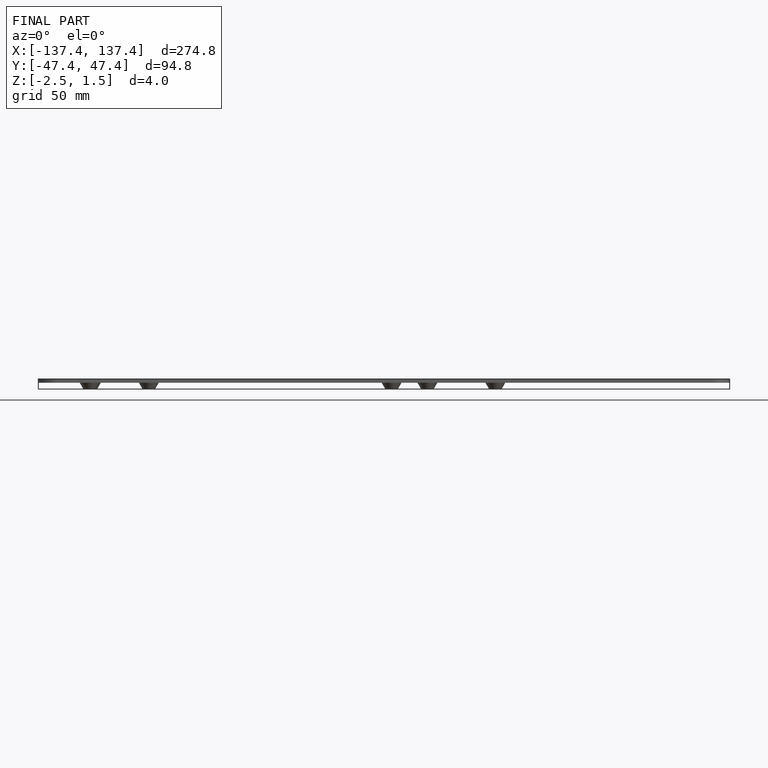
[diagram: finished part — front view with bounding-box wireframe]
